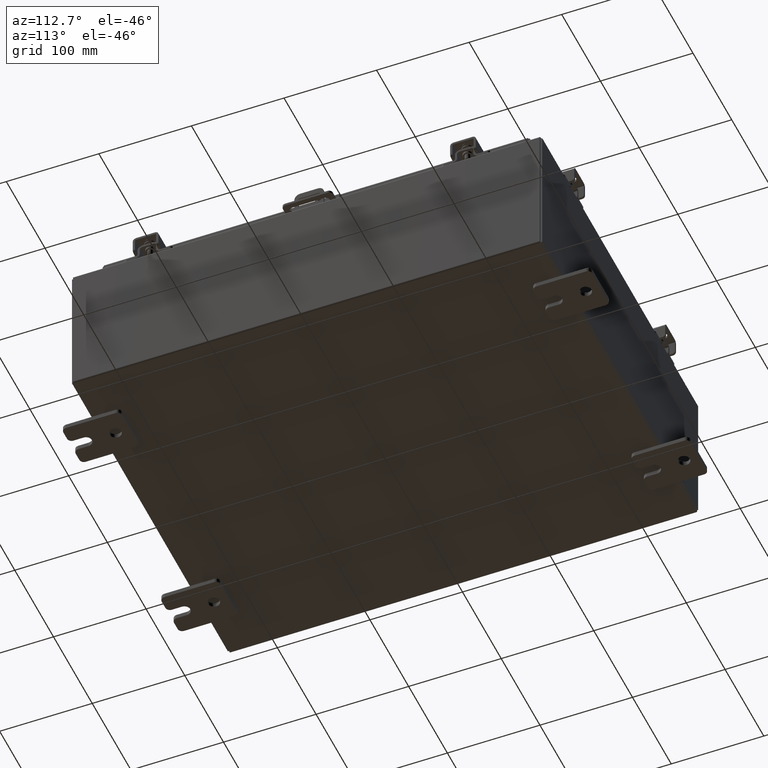
[diagram: clean part render]
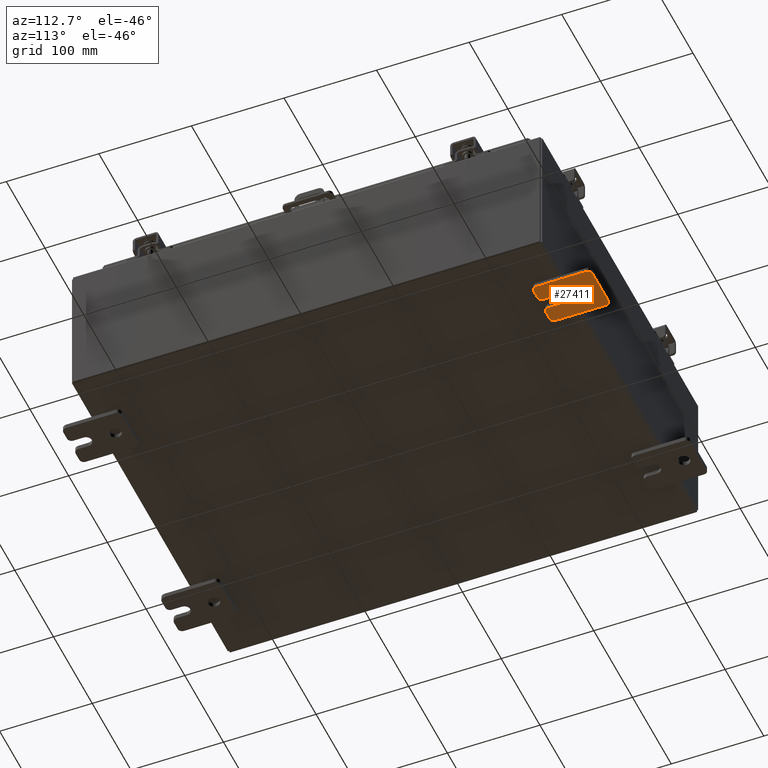
[diagram: same view with one face highlighted and labeled with its STEP entity id]
A machine part, auxiliary view. The second image highlights one B-rep face of the part: STEP entity #27411.
In plain terms, the highlighted planar face has unit normal (0, 0, 1).
Its self-contained STEP definition (entity closure, byte-faithful):
#494 = CARTESIAN_POINT ( 'NONE',  ( -0.1879999999999997800, 1.249999999999994200, -1.000000000000010400 ) ) ;
#538 = VERTEX_POINT ( 'NONE', #7735 ) ;
#1074 = AXIS2_PLACEMENT_3D ( 'NONE', #25612, #29775, #16501 ) ;
#1291 = AXIS2_PLACEMENT_3D ( 'NONE', #25514, #3679, #28382 ) ;
#1577 = EDGE_CURVE ( 'NONE', #16781, #10376, #14845, .T. ) ;
#1645 = CARTESIAN_POINT ( 'NONE',  ( -0.1880000000000001900, -0.6249999999999992200, -0.2499999999999998600 ) ) ;
#1721 = CARTESIAN_POINT ( 'NONE',  ( -0.1879999999999997800, 1.249999999999994700, -0.8100000000000092700 ) ) ;
#1824 = DIRECTION ( 'NONE',  ( 0.0000000000000000000, -1.639108796198553600E-015, -1.000000000000000000 ) ) ;
#2281 = VECTOR ( 'NONE', #20134, 39.37007874015748100 ) ;
#2465 = CIRCLE ( 'NONE', #1291, 0.1900000000000011100 ) ;
#3052 = CIRCLE ( 'NONE', #11132, 0.1900000000000011100 ) ;
#3271 = DIRECTION ( 'NONE',  ( 1.000000000000000000, -0.0000000000000000000, -5.163192708025532000E-017 ) ) ;
#3285 = CARTESIAN_POINT ( 'NONE',  ( -0.1880000000000005800, -1.250000000000003800, 0.2500000000000005000 ) ) ;
#3404 = EDGE_CURVE ( 'NONE', #538, #18588, #12024, .T. ) ;
#3586 = EDGE_LOOP ( 'NONE', ( #27016, #13941 ) ) ;
#3679 = DIRECTION ( 'NONE',  ( -1.000000000000000000, -0.0000000000000000000, 0.0000000000000000000 ) ) ;
#4055 = CARTESIAN_POINT ( 'NONE',  ( -0.1879999999999997800, 1.249999999999997300, 0.8099999999999935000 ) ) ;
#4056 = CARTESIAN_POINT ( 'NONE',  ( -0.1879999999999997800, -1.250000000000002400, 0.8099999999999980500 ) ) ;
#4355 = VERTEX_POINT ( 'NONE', #4056 ) ;
#4680 = EDGE_CURVE ( 'NONE', #15195, #12485, #20189, .T. ) ;
#4775 = ORIENTED_EDGE ( 'NONE', *, *, #13533, .T. ) ;
#4941 = EDGE_CURVE ( 'NONE', #28320, #8856, #14813, .T. ) ;
#5179 = CARTESIAN_POINT ( 'NONE',  ( -0.1880000000000001900, -0.6249999999999992200, -0.2499999999999993900 ) ) ;
#5402 = DIRECTION ( 'NONE',  ( 0.0000000000000000000, 0.0000000000000000000, -1.000000000000000000 ) ) ;
#5687 = DIRECTION ( 'NONE',  ( -1.000000000000000000, 6.523827964459549700E-016, 5.163192708025532000E-017 ) ) ;
#5724 = DIRECTION ( 'NONE',  ( -6.829619984160660000E-016, -1.000000000000000000, 0.0000000000000000000 ) ) ;
#5745 = CARTESIAN_POINT ( 'NONE',  ( -0.1880000000000001900, -0.6249999999999992200, 6.829619984160658000E-017 ) ) ;
#5907 = VERTEX_POINT ( 'NONE', #8757 ) ;
#5923 = VECTOR ( 'NONE', #14803, 39.37007874015748100 ) ;
#6179 = CARTESIAN_POINT ( 'NONE',  ( -0.1879999999999997800, -1.250000000000005600, -1.000000000000006200 ) ) ;
#6246 = EDGE_CURVE ( 'NONE', #538, #29469, #14919, .T. ) ;
#6900 = CARTESIAN_POINT ( 'NONE',  ( -0.1880000000000010000, 0.6249999999999992200, -7.703811342100550500E-020 ) ) ;
#7024 = CARTESIAN_POINT ( 'NONE',  ( -0.1880000000000001900, -0.6249999999999992200, 0.2500000000000005000 ) ) ;
#7585 = LINE ( 'NONE', #494, #10206 ) ;
#7619 = ORIENTED_EDGE ( 'NONE', *, *, #25767, .F. ) ;
#7735 = CARTESIAN_POINT ( 'NONE',  ( -0.1879999999999997800, 1.059999999999996500, 0.9999999999999953400 ) ) ;
#7819 = DIRECTION ( 'NONE',  ( 0.0000000000000000000, 0.0000000000000000000, -1.000000000000000000 ) ) ;
#7997 = VECTOR ( 'NONE', #1824, 39.37007874015748100 ) ;
#8516 = DIRECTION ( 'NONE',  ( 6.556435184794182400E-016, 1.000000000000000000, 0.0000000000000000000 ) ) ;
#8745 = ORIENTED_EDGE ( 'NONE', *, *, #11820, .T. ) ;
#8757 = CARTESIAN_POINT ( 'NONE',  ( -0.1880000000000010000, 0.6249999999999992200, -0.2499999999999999200 ) ) ;
#8856 = VERTEX_POINT ( 'NONE', #22924 ) ;
#9831 = AXIS2_PLACEMENT_3D ( 'NONE', #26436, #26404, #26268 ) ;
#10024 = VERTEX_POINT ( 'NONE', #14724 ) ;
#10206 = VECTOR ( 'NONE', #14488, 39.37007874015748100 ) ;
#10376 = VERTEX_POINT ( 'NONE', #1645 ) ;
#10669 = VERTEX_POINT ( 'NONE', #27619 ) ;
#11132 = AXIS2_PLACEMENT_3D ( 'NONE', #29690, #20448, #13882 ) ;
#11190 = ORIENTED_EDGE ( 'NONE', *, *, #4941, .F. ) ;
#11413 = VERTEX_POINT ( 'NONE', #22738 ) ;
#11820 = EDGE_CURVE ( 'NONE', #26362, #8856, #13186, .T. ) ;
#12024 = LINE ( 'NONE', #15200, #5923 ) ;
#12198 = CARTESIAN_POINT ( 'NONE',  ( -0.1879999999999997800, 1.059999999999993400, -1.000000000000010000 ) ) ;
#12355 = EDGE_CURVE ( 'NONE', #4355, #11413, #24380, .T. ) ;
#12485 = VERTEX_POINT ( 'NONE', #12198 ) ;
#12716 = EDGE_CURVE ( 'NONE', #10669, #16781, #16669, .T. ) ;
#13186 = CIRCLE ( 'NONE', #28403, 0.1900000000000011100 ) ;
#13533 = EDGE_CURVE ( 'NONE', #10669, #11413, #13734, .T. ) ;
#13548 = DIRECTION ( 'NONE',  ( 0.0000000000000000000, 0.0000000000000000000, -1.000000000000000000 ) ) ;
#13734 = CIRCLE ( 'NONE', #22070, 0.1900000000000011400 ) ;
#13849 = CARTESIAN_POINT ( 'NONE',  ( -0.1880000000000010000, 0.6249999999999992200, 0.2499999999999999200 ) ) ;
#13882 = DIRECTION ( 'NONE',  ( 0.0000000000000000000, 7.189073667537492800E-016, -1.000000000000000000 ) ) ;
#13941 = ORIENTED_EDGE ( 'NONE', *, *, #28914, .T. ) ;
#14074 = DIRECTION ( 'NONE',  ( 1.000000000000000000, -0.0000000000000000000, -5.163192708025532000E-017 ) ) ;
#14488 = DIRECTION ( 'NONE',  ( 0.0000000000000000000, 1.639108796198553600E-015, 1.000000000000000000 ) ) ;
#14724 = CARTESIAN_POINT ( 'NONE',  ( -0.1880000000000004700, -1.060000000000003400, -0.2499999999999994400 ) ) ;
#14803 = DIRECTION ( 'NONE',  ( 0.0000000000000000000, -1.000000000000000000, 1.639108796198558100E-015 ) ) ;
#14813 = LINE ( 'NONE', #22783, #27153 ) ;
#14845 = CIRCLE ( 'NONE', #29118, 0.2499999999999999200 ) ;
#14919 = CIRCLE ( 'NONE', #17315, 0.1900000000000011100 ) ;
#14994 = VERTEX_POINT ( 'NONE', #13849 ) ;
#15195 = VERTEX_POINT ( 'NONE', #1721 ) ;
#15200 = CARTESIAN_POINT ( 'NONE',  ( -0.1879999999999997800, 1.249999999999997600, 0.9999999999999951200 ) ) ;
#15297 = ORIENTED_EDGE ( 'NONE', *, *, #1577, .F. ) ;
#16013 = ORIENTED_EDGE ( 'NONE', *, *, #12355, .F. ) ;
#16073 = FACE_OUTER_BOUND ( 'NONE', #24251, .T. ) ;
#16250 = FACE_BOUND ( 'NONE', #3586, .T. ) ;
#16366 = ORIENTED_EDGE ( 'NONE', *, *, #4680, .T. ) ;
#16501 = DIRECTION ( 'NONE',  ( -0.0000000000000000000, 0.0000000000000000000, -1.000000000000000000 ) ) ;
#16669 = LINE ( 'NONE', #3285, #28215 ) ;
#16781 = VERTEX_POINT ( 'NONE', #7024 ) ;
#17155 = VECTOR ( 'NONE', #19418, 39.37007874015748100 ) ;
#17315 = AXIS2_PLACEMENT_3D ( 'NONE', #24466, #24360, #24081 ) ;
#18309 = CARTESIAN_POINT ( 'NONE',  ( -0.1880000000000010000, 0.6249999999999992200, -7.703811342100550500E-020 ) ) ;
#18487 = CIRCLE ( 'NONE', #24552, 0.2499999999999999200 ) ;
#18588 = VERTEX_POINT ( 'NONE', #26565 ) ;
#18724 = AXIS2_PLACEMENT_3D ( 'NONE', #6900, #3271, #5402 ) ;
#18917 = ORIENTED_EDGE ( 'NONE', *, *, #20190, .F. ) ;
#18933 = ORIENTED_EDGE ( 'NONE', *, *, #24394, .T. ) ;
#19205 = CIRCLE ( 'NONE', #18724, 0.2499999999999999200 ) ;
#19418 = DIRECTION ( 'NONE',  ( -6.556435184794182400E-016, -1.000000000000000000, -1.639108796198545600E-016 ) ) ;
#19428 = EDGE_CURVE ( 'NONE', #4355, #18588, #3052, .T. ) ;
#20038 = ORIENTED_EDGE ( 'NONE', *, *, #19428, .T. ) ;
#20067 = EDGE_CURVE ( 'NONE', #15195, #29469, #7585, .T. ) ;
#20134 = DIRECTION ( 'NONE',  ( 0.0000000000000000000, 1.000000000000000000, -1.639108796198558100E-015 ) ) ;
#20138 = DIRECTION ( 'NONE',  ( 0.0000000000000000000, -1.639108796198553600E-015, -1.000000000000000000 ) ) ;
#20189 = CIRCLE ( 'NONE', #9831, 0.1900000000000011100 ) ;
#20190 = EDGE_CURVE ( 'NONE', #26362, #12485, #28951, .T. ) ;
#20448 = DIRECTION ( 'NONE',  ( -1.000000000000000000, -0.0000000000000000000, 0.0000000000000000000 ) ) ;
#20641 = CARTESIAN_POINT ( 'NONE',  ( -0.1879999999999997800, -1.060000000000004100, -0.8100000000000050500 ) ) ;
#21820 = ORIENTED_EDGE ( 'NONE', *, *, #3404, .F. ) ;
#22070 = AXIS2_PLACEMENT_3D ( 'NONE', #26783, #27556, #7819 ) ;
#22705 = DIRECTION ( 'NONE',  ( -1.000000000000000000, -0.0000000000000000000, 0.0000000000000000000 ) ) ;
#22738 = CARTESIAN_POINT ( 'NONE',  ( -0.1879999999999997800, -1.250000000000003100, 0.4400000000000020000 ) ) ;
#22783 = CARTESIAN_POINT ( 'NONE',  ( -0.1879999999999997800, -1.250000000000002200, 0.9999999999999992200 ) ) ;
#22924 = CARTESIAN_POINT ( 'NONE',  ( -0.1879999999999997800, -1.250000000000005300, -0.8100000000000047200 ) ) ;
#23717 = LINE ( 'NONE', #5179, #17155 ) ;
#24081 = DIRECTION ( 'NONE',  ( 0.0000000000000000000, 0.0000000000000000000, -1.000000000000000000 ) ) ;
#24251 = EDGE_LOOP ( 'NONE', ( #16013, #20038, #21820, #25104, #28085, #16366, #18917, #8745, #11190, #18933, #7619, #15297, #28064, #4775 ) ) ;
#24315 = CARTESIAN_POINT ( 'NONE',  ( -0.1879999999999997800, -1.250000000000002200, 0.9999999999999992200 ) ) ;
#24360 = DIRECTION ( 'NONE',  ( -1.000000000000000000, -0.0000000000000000000, 0.0000000000000000000 ) ) ;
#24380 = LINE ( 'NONE', #24315, #7997 ) ;
#24394 = EDGE_CURVE ( 'NONE', #28320, #10024, #2465, .T. ) ;
#24466 = CARTESIAN_POINT ( 'NONE',  ( -0.1879999999999997800, 1.059999999999996300, 0.8099999999999938400 ) ) ;
#24552 = AXIS2_PLACEMENT_3D ( 'NONE', #18309, #14074, #13548 ) ;
#25033 = PLANE ( 'NONE',  #1074 ) ;
#25104 = ORIENTED_EDGE ( 'NONE', *, *, #6246, .T. ) ;
#25409 = CARTESIAN_POINT ( 'NONE',  ( -0.1879999999999997800, -1.250000000000004700, -0.4400000000000002200 ) ) ;
#25514 = CARTESIAN_POINT ( 'NONE',  ( -0.1879999999999997800, -1.060000000000003400, -0.4400000000000005000 ) ) ;
#25612 = CARTESIAN_POINT ( 'NONE',  ( -0.1879999999999997800, 0.0000000000000000000, 0.0000000000000000000 ) ) ;
#25767 = EDGE_CURVE ( 'NONE', #10376, #10024, #23717, .T. ) ;
#26268 = DIRECTION ( 'NONE',  ( 0.0000000000000000000, 0.0000000000000000000, -1.000000000000000000 ) ) ;
#26362 = VERTEX_POINT ( 'NONE', #27698 ) ;
#26404 = DIRECTION ( 'NONE',  ( -1.000000000000000000, -0.0000000000000000000, 0.0000000000000000000 ) ) ;
#26436 = CARTESIAN_POINT ( 'NONE',  ( -0.1879999999999997800, 1.059999999999993600, -0.8100000000000089400 ) ) ;
#26565 = CARTESIAN_POINT ( 'NONE',  ( -0.1879999999999997800, -1.060000000000001200, 0.9999999999999988900 ) ) ;
#26783 = CARTESIAN_POINT ( 'NONE',  ( -0.1879999999999997800, -1.060000000000002100, 0.4400000000000016700 ) ) ;
#27016 = ORIENTED_EDGE ( 'NONE', *, *, #29375, .T. ) ;
#27153 = VECTOR ( 'NONE', #20138, 39.37007874015748100 ) ;
#27218 = DIRECTION ( 'NONE',  ( 0.0000000000000000000, 0.0000000000000000000, -1.000000000000000000 ) ) ;
#27411 = ADVANCED_FACE ( 'NONE', ( #16250, #16073 ), #25033, .F. ) ;
#27556 = DIRECTION ( 'NONE',  ( -1.000000000000000000, -0.0000000000000000000, 0.0000000000000000000 ) ) ;
#27619 = CARTESIAN_POINT ( 'NONE',  ( -0.1880000000000004700, -1.060000000000002100, 0.2500000000000005000 ) ) ;
#27698 = CARTESIAN_POINT ( 'NONE',  ( -0.1879999999999997800, -1.060000000000004500, -1.000000000000006400 ) ) ;
#28064 = ORIENTED_EDGE ( 'NONE', *, *, #12716, .F. ) ;
#28085 = ORIENTED_EDGE ( 'NONE', *, *, #20067, .F. ) ;
#28215 = VECTOR ( 'NONE', #8516, 39.37007874015748100 ) ;
#28320 = VERTEX_POINT ( 'NONE', #25409 ) ;
#28382 = DIRECTION ( 'NONE',  ( 0.0000000000000000000, 0.0000000000000000000, -1.000000000000000000 ) ) ;
#28403 = AXIS2_PLACEMENT_3D ( 'NONE', #20641, #22705, #27218 ) ;
#28914 = EDGE_CURVE ( 'NONE', #14994, #5907, #19205, .T. ) ;
#28951 = LINE ( 'NONE', #6179, #2281 ) ;
#29118 = AXIS2_PLACEMENT_3D ( 'NONE', #5745, #5687, #5724 ) ;
#29375 = EDGE_CURVE ( 'NONE', #5907, #14994, #18487, .T. ) ;
#29469 = VERTEX_POINT ( 'NONE', #4055 ) ;
#29690 = CARTESIAN_POINT ( 'NONE',  ( -0.1879999999999997800, -1.060000000000001600, 0.8099999999999978300 ) ) ;
#29775 = DIRECTION ( 'NONE',  ( 1.000000000000000000, 0.0000000000000000000, -0.0000000000000000000 ) ) ;